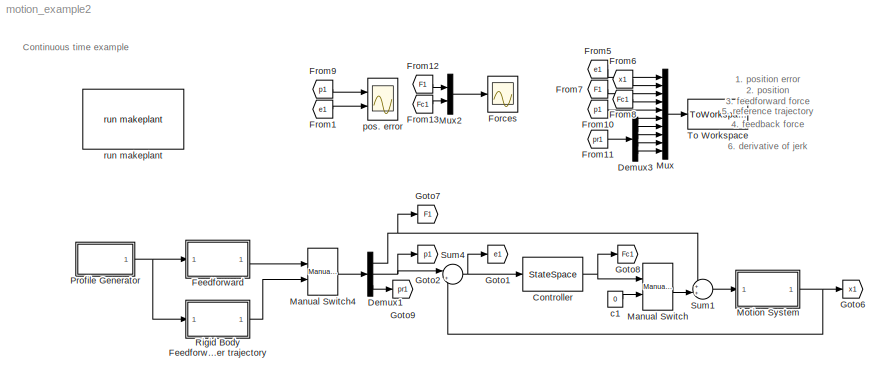
MODEL motion_example2
KIND model
BLOCK [StateSpace] Controller
  A = Ac
  B = Bc
  C = Cc
  D = Dc
  InitialCondition = 0
  Ports = [1, 1]
  SID = 1
BLOCK [Demux] Demux1
  Outputs = [1 1 5]
  Ports = [1, 3]
  SID = 2
BLOCK [Demux] Demux3
  Outputs = 5
  Ports = [1, 5]
  SID = 3
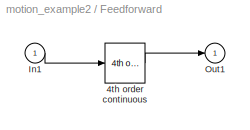
BLOCK [SubSystem] Feedforward
  AttributesFormatString = %<BlockChoice>
  BlockChoice = 4th order continuous
  MemberBlocks = 2nd order continuous,2nd order discrete,3d order continuous,3d order discrete,4th order continuous,4th order digital,4th order discrete
  Ports = [1, 1]
  RequestExecContextInheritance = off
  SID = 4
  ShowPortLabels = none
  TemplateBlock = motion/Feedforward Controllers/Feedforward
BLOCK [Reference] Feedforward/4th order continuous  REF=motion/Feedforward Controllers/4th order continuous  (lib defined in mdl_0f46438c83f5)
  Ports = [1, 1]
  SID = 4::2
  SourceBlock = motion/Feedforward Controllers/4th order continuous
  SourceType = Continuous Time Feedforward
  c = 6e5
  k1 = 10
  k12 = 500
  k2 = 10
  m1 = 20
  m2 = 10
BLOCK [Inport] Feedforward/In1
  IconDisplay = Port number
  SID = 4::1
BLOCK [Outport] Feedforward/Out1
  IconDisplay = Port number
  SID = 4::3
BLOCK [Scope] Forces
  Floating = off
  NumInputPorts = 1
  Ports = [1]
  SID = 5
  ScopeSpecificationString = C++SS(StrPVP('Location','[875, 598, 1230, 890]'),StrPVP('Open','on'),StrPVP('TickLabels','OneTimeTick'),StrPVP('ZoomMode','yonly'),MxPVP('AxesTitles',54,'struct(''axes1'',''%<SignalLabel>'')'),StrPVP('Grid','on'),StrPVP('TimeRange','3'),StrPVP('YMin','-150'),StrPVP('YMax','200'),StrPVP('SaveToWorkspace','off'),StrPVP('SaveName','ScopeData7'),StrPVP('DataFormat','StructureWithTime'),StrPVP('LimitDa...<+146ch>
BLOCK [From] From1
  CloseFcn = tagdialog Close
  GotoTag = e1
  SID = 6
BLOCK [From] From10
  CloseFcn = tagdialog Close
  GotoTag = p1
  SID = 7
BLOCK [From] From11
  CloseFcn = tagdialog Close
  GotoTag = pr1
  SID = 8
BLOCK [From] From12
  CloseFcn = tagdialog Close
  GotoTag = F1
  SID = 9
BLOCK [From] From13
  CloseFcn = tagdialog Close
  GotoTag = Fc1
  SID = 10
BLOCK [From] From5
  CloseFcn = tagdialog Close
  GotoTag = e1
  SID = 11
BLOCK [From] From6
  CloseFcn = tagdialog Close
  GotoTag = x1
  SID = 12
BLOCK [From] From7
  CloseFcn = tagdialog Close
  GotoTag = F1
  SID = 13
BLOCK [From] From8
  CloseFcn = tagdialog Close
  GotoTag = Fc1
  SID = 14
BLOCK [From] From9
  CloseFcn = tagdialog Close
  GotoTag = p1
  SID = 15
BLOCK [Goto] Goto1
  GotoTag = e1
  SID = 16
BLOCK [Goto] Goto2
  GotoTag = p1
  SID = 17
BLOCK [Goto] Goto6
  GotoTag = x1
  SID = 18
BLOCK [Goto] Goto7
  GotoTag = F1
  SID = 19
BLOCK [Goto] Goto8
  GotoTag = Fc1
  SID = 20
BLOCK [Goto] Goto9
  GotoTag = pr1
  SID = 21
BLOCK [Reference] Manual Switch  REF=simulink3/Nonlinear/Manual Switch
  Ports = [2, 1]
  SID = 22
  SourceBlock = simulink3/Nonlinear/Manual Switch
  SourceProductBaseCode = SL
  SourceProductName = Simulink
  SourceType = Manual Switch
  action = 0
  sw = 1
BLOCK [Reference] Manual Switch4  REF=simulink3/Nonlinear/Manual Switch
  Ports = [2, 1]
  SID = 23
  SourceBlock = simulink3/Nonlinear/Manual Switch
  SourceProductBaseCode = SL
  SourceProductName = Simulink
  SourceType = Manual Switch
  action = 0
  sw = 1
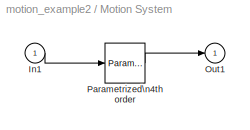
BLOCK [SubSystem] Motion System
  AttributesFormatString = %<BlockChoice>
  BlockChoice = Parametrized 4th order
  MemberBlocks = 2nd order,4th order,6th order,Parametrized 4th order
  Ports = [1, 1]
  RequestExecContextInheritance = off
  SID = 24
  ShowPortLabels = none
  TemplateBlock = motion/Motion Systems1/Motion System
BLOCK [Inport] Motion System/In1
  IconDisplay = Port number
  SID = 24::1
BLOCK [Outport] Motion System/Out1
  IconDisplay = Port number
  SID = 24::3
BLOCK [Reference] Motion System/Parametrized\n4th order  REF=motion/Motion Systems1/Parametrized\n4th order  (lib defined in mdl_0f46438c83f5)
  Ports = [1, 1]
  SID = 24::2
  SourceBlock = motion/Motion Systems1/Parametrized\n4th order
  SourceType = Parametrized 4th order motion system model
  c = 6e5
  k1 = 10
  k12 = 500
  k2 = 10
  m1 = 20
  m2 = 10
BLOCK [Mux] Mux
  DisplayOption = bar
  Inputs = 10
  Ports = [10, 1]
  SID = 25
BLOCK [Mux] Mux2
  DisplayOption = bar
  Inputs = 2
  Ports = [2, 1]
  SID = 26
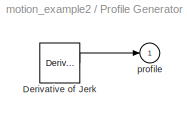
BLOCK [SubSystem] Profile Generator
  AttributesFormatString = %<BlockChoice>
  BlockChoice = Derivative of Jerk
  MemberBlocks = Acceleration,Derivative of Jerk,Jerk,dJerk with error correction
  Ports = [0, 1]
  RequestExecContextInheritance = off
  SID = 27
  ShowPortLabels = none
  TemplateBlock = motion/Profile Generators/Profile Generator
BLOCK [Reference] Profile Generator/Derivative of Jerk  REF=motion/Profile Generators/Derivative of Jerk  (lib defined in mdl_0f46438c83f5)
  Ports = [0, 1]
  SID = 27::1
  SourceBlock = motion/Profile Generators/Derivative of Jerk
  SourceType = 4th Order Profile Generator
  Ts = 0
  a = 5
  d = 1000
  j = 45
  t0 = .3
  v = 1
  x = 1
BLOCK [Outport] Profile Generator/profile
  IconDisplay = Port number
  SID = 27::2
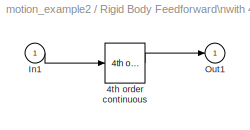
BLOCK [SubSystem] Rigid Body Feedforward\nwith 4th order trajectory
  AttributesFormatString = %<BlockChoice>
  BlockChoice = 4th order continuous
  MemberBlocks = 2nd order continuous,2nd order discrete,3d order continuous,3d order discrete,4th order continuous,4th order digital,4th order discrete
  Ports = [1, 1]
  RequestExecContextInheritance = off
  SID = 28
  ShowPortLabels = none
  TemplateBlock = motion/Feedforward Controllers/Feedforward
BLOCK [Reference] Rigid Body Feedforward\nwith 4th order trajectory/4th order continuous  REF=motion/Feedforward Controllers/4th order continuous  (lib defined in mdl_0f46438c83f5)
  Ports = [1, 1]
  SID = 28::2
  SourceBlock = motion/Feedforward Controllers/4th order continuous
  SourceType = Continuous Time Feedforward
  c = 6e5
  k1 = 20
  k12 = 0
  k2 = 0
  m1 = 30
  m2 = 0
BLOCK [Inport] Rigid Body Feedforward\nwith 4th order trajectory/In1
  IconDisplay = Port number
  SID = 28::1
BLOCK [Outport] Rigid Body Feedforward\nwith 4th order trajectory/Out1
  IconDisplay = Port number
  SID = 28::3
BLOCK [Sum] Sum1
  IconShape = round
  Inputs = ++|
  Ports = [2, 1]
  SID = 29
BLOCK [Sum] Sum4
  IconShape = round
  Inputs = |+-
  Ports = [2, 1]
  SID = 30
BLOCK [ToWorkspace] To Workspace
  MaxDataPoints = inf
  Ports = [1]
  SID = 31
  SampleTime = 2e-4
  SaveFormat = Structure With Time
  VariableName = y
BLOCK [Constant] c1
  SID = 32
  Value = 0
BLOCK [Scope] pos. error
  Floating = off
  NumInputPorts = 2
  Ports = [2]
  SID = 33
  ScopeSpecificationString = C++SS(StrPVP('Location','[861, 67, 1275, 531]'),StrPVP('Open','on'),StrPVP('TickLabels','OneTimeTick'),StrPVP('ZoomMode','yonly'),MxPVP('AxesTitles',54,'struct(''axes1'',''Position'',''axes2'',''Position Error'')'),StrPVP('Grid','on'),StrPVP('TimeRange','3'),StrPVP('YMin','0~-0.006'),StrPVP('YMax','1~0.006'),StrPVP('SaveToWorkspace','off'),StrPVP('SaveName','ScopeData4'),StrPVP('DataFormat','Struc...<+178ch>
BLOCK [Reference] run makeplant  REF=motion/General/run makeplant  (lib defined in mdl_0f46438c83f5)
  Ports = []
  SID = 34
  SourceBlock = motion/General/run makeplant
  SourceType = Script Runner
ANNOTATION (root): 1. position error\n2. position \n3. feedforward force\n4. feedback force\n5. reference trajectory\n6. derivative of jerk\n7. jerk\n8. acceleration\n9. velocity\n10. position
ANNOTATION (root): Continuous time example
NET Controller:1 -> Goto8:1, Manual Switch:1
NET Demux1:1 -> Goto7:1, Sum1:1
NET Demux1:2 -> Goto2:1, Sum4:1
LINE Demux1:3 -> Goto9:1
LINE Demux3:1 -> Mux:6
LINE Demux3:2 -> Mux:7
LINE Demux3:3 -> Mux:8
LINE Demux3:4 -> Mux:9
LINE Demux3:5 -> Mux:10
LINE Feedforward/4th order continuous:1 -> Feedforward/Out1:1
LINE Feedforward/In1:1 -> Feedforward/4th order continuous:1
LINE Feedforward:1 -> Manual Switch4:1
LINE From10:1 -> Mux:5
LINE From11:1 -> Demux3:1
LINE From12:1 -> Mux2:1
LINE From13:1 -> Mux2:2
LINE From1:1 -> pos. error:2
LINE From5:1 -> Mux:1
LINE From6:1 -> Mux:2
LINE From7:1 -> Mux:3
LINE From8:1 -> Mux:4
LINE From9:1 -> pos. error:1
LINE Manual Switch4:1 -> Demux1:1
LINE Manual Switch:1 -> Sum1:2
LINE Motion System/In1:1 -> Motion System/Parametrized\n4th order:1
LINE Motion System/Parametrized\n4th order:1 -> Motion System/Out1:1
NET Motion System:1 -> Goto6:1, Sum4:2
LINE Mux2:1 -> Forces:1
LINE Mux:1 -> To Workspace:1
LINE Profile Generator/Derivative of Jerk:1 -> Profile Generator/profile:1
NET Profile Generator:1 -> Feedforward:1, Rigid Body Feedforward\nwith 4th order trajectory:1
LINE Rigid Body Feedforward\nwith 4th order trajectory/4th order continuous:1 -> Rigid Body Feedforward\nwith 4th order trajectory/Out1:1
LINE Rigid Body Feedforward\nwith 4th order trajectory/In1:1 -> Rigid Body Feedforward\nwith 4th order trajectory/4th order continuous:1
LINE Rigid Body Feedforward\nwith 4th order trajectory:1 -> Manual Switch4:2
LINE Sum1:1 -> Motion System:1
NET Sum4:1 -> Controller:1, Goto1:1
LINE c1:1 -> Manual Switch:2
note: NET lines group one-source signal fan-out (src -> all destinations, sorted); 1:1 wires keep LINE
